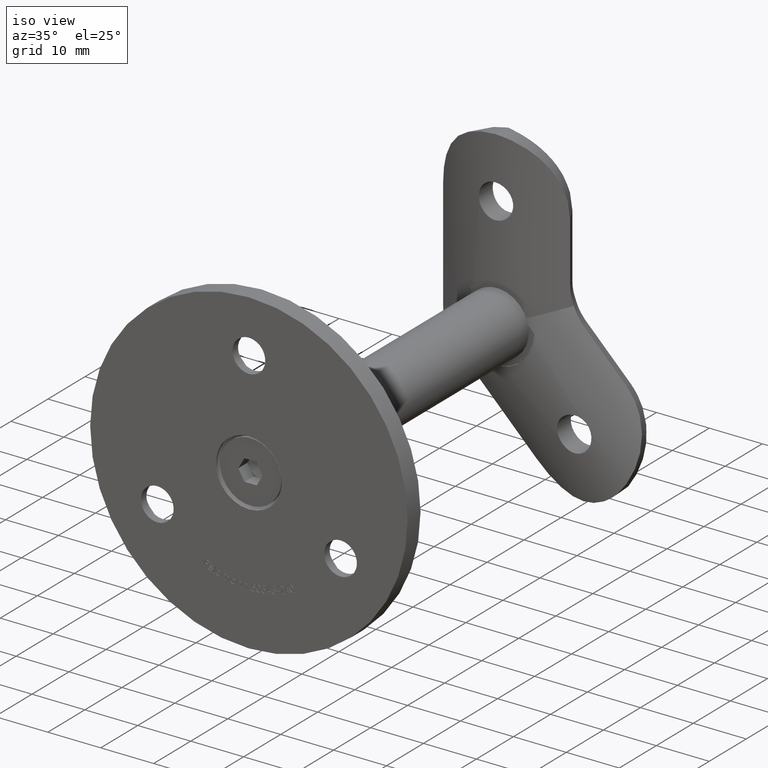
[diagram: clean part render]
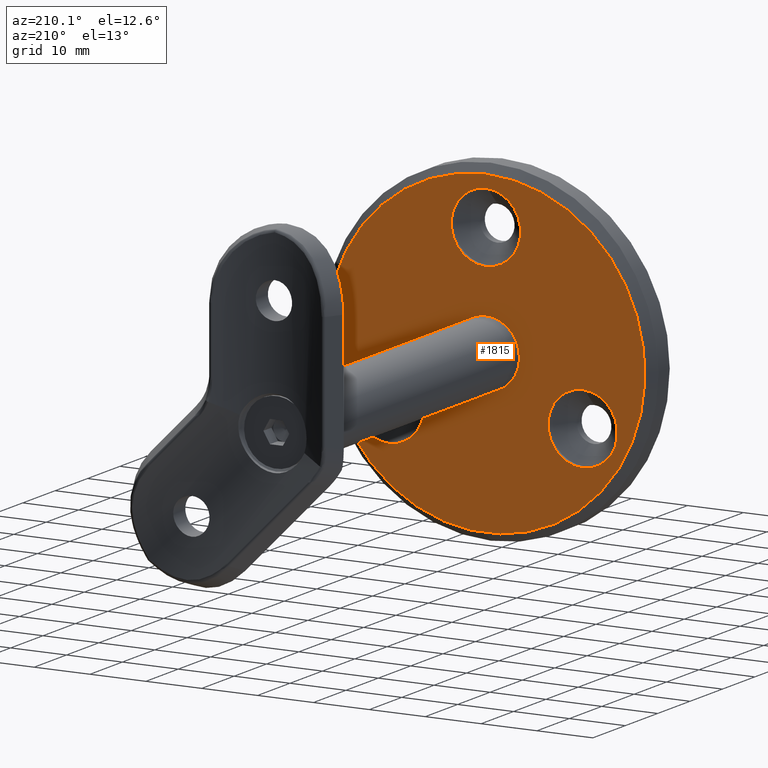
[diagram: tour spotlight — one face highlighted and labeled with its STEP entity id]
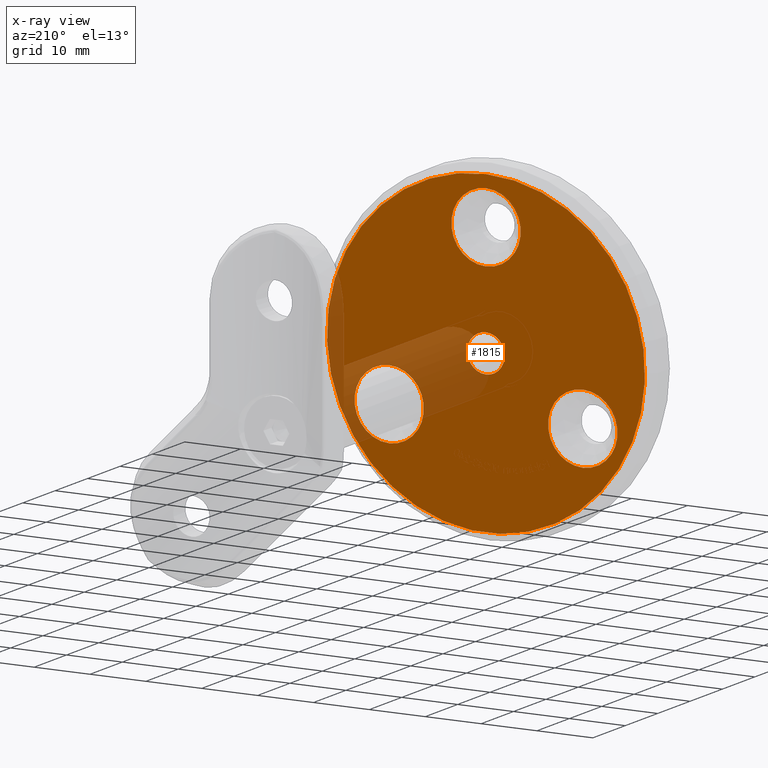
[diagram: x-ray of the same camera — body ghosted, this tour face saturated]
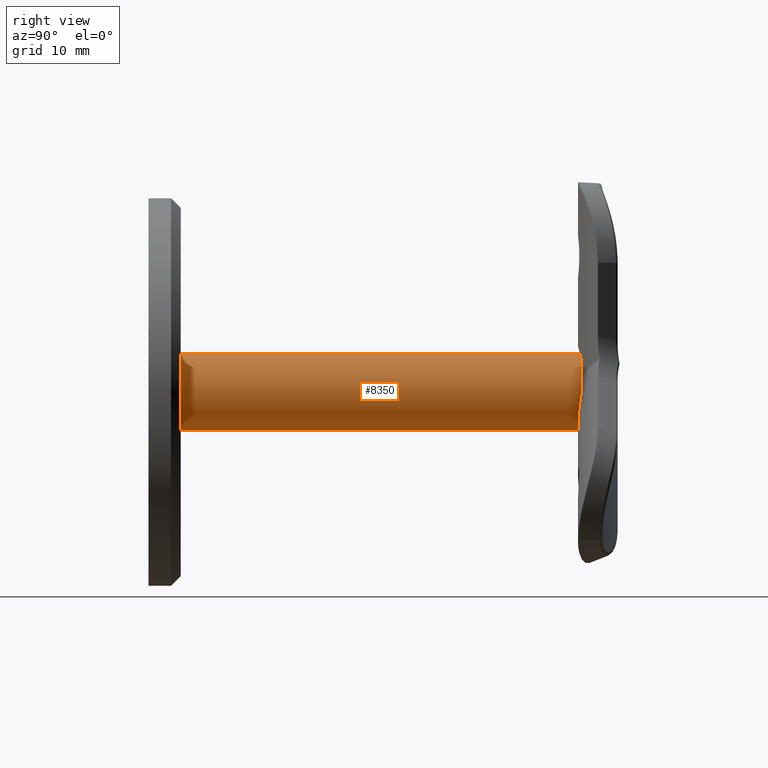
[diagram: tour spotlight — one face highlighted and labeled with its STEP entity id]
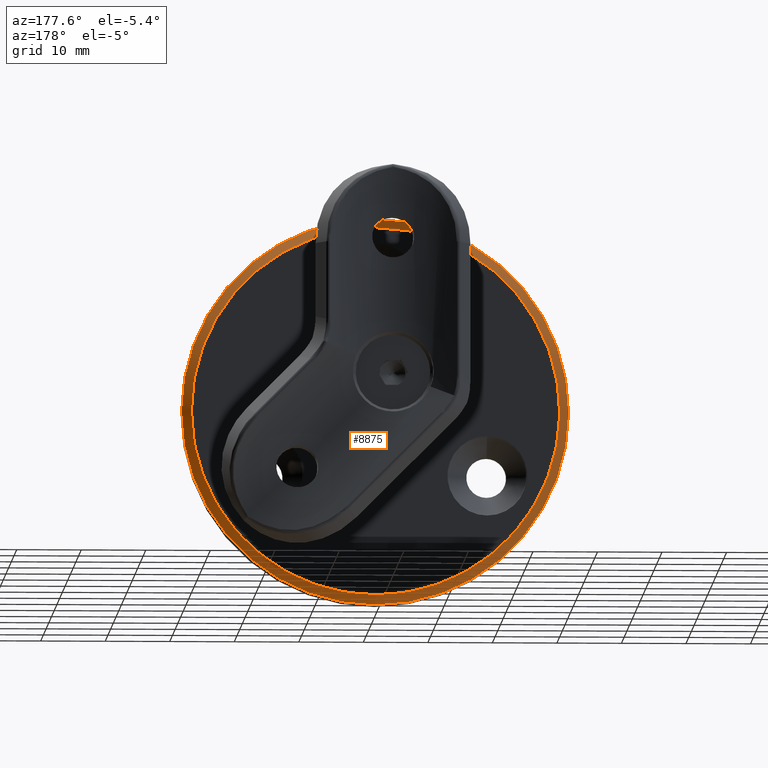
[diagram: tour spotlight — one face highlighted and labeled with its STEP entity id]
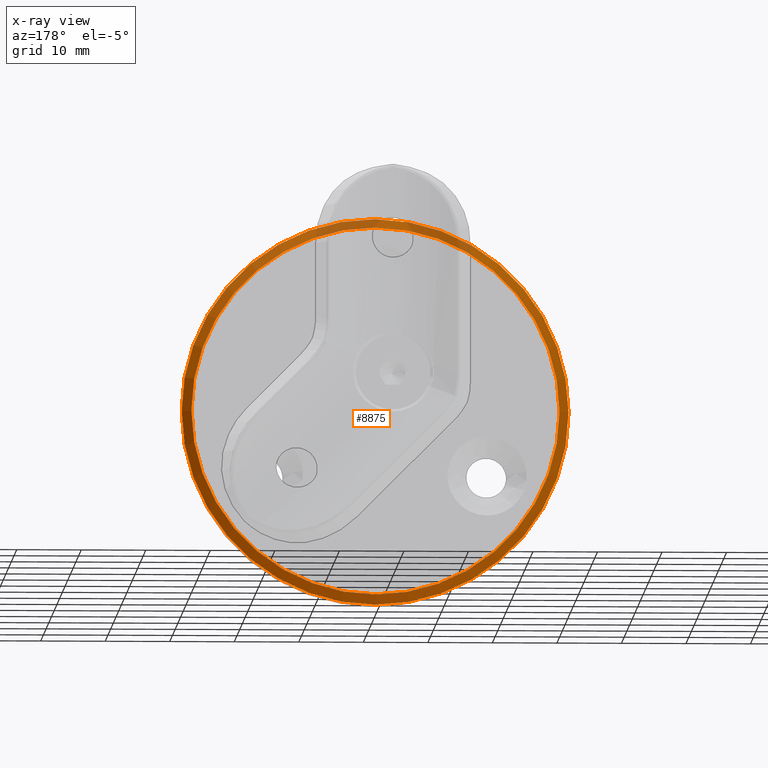
[diagram: x-ray of the same camera — body ghosted, this tour face saturated]
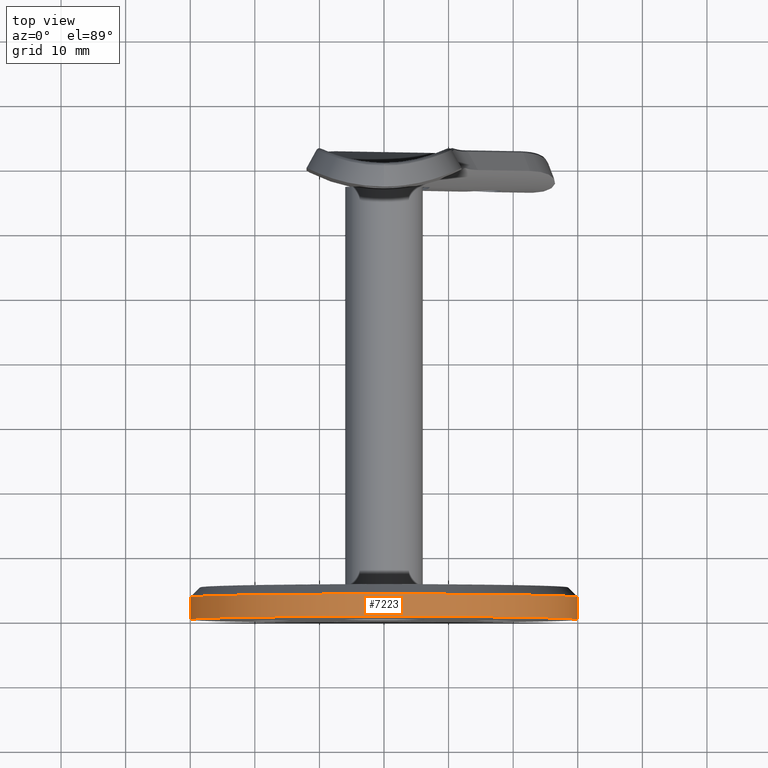
[diagram: tour spotlight — one face highlighted and labeled with its STEP entity id]
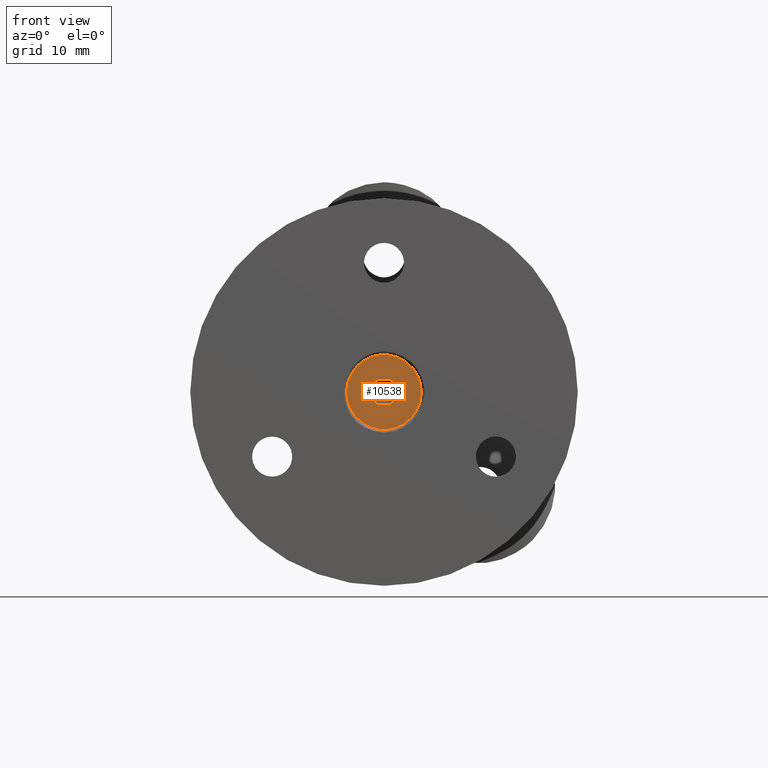
[diagram: tour spotlight — one face highlighted and labeled with its STEP entity id]
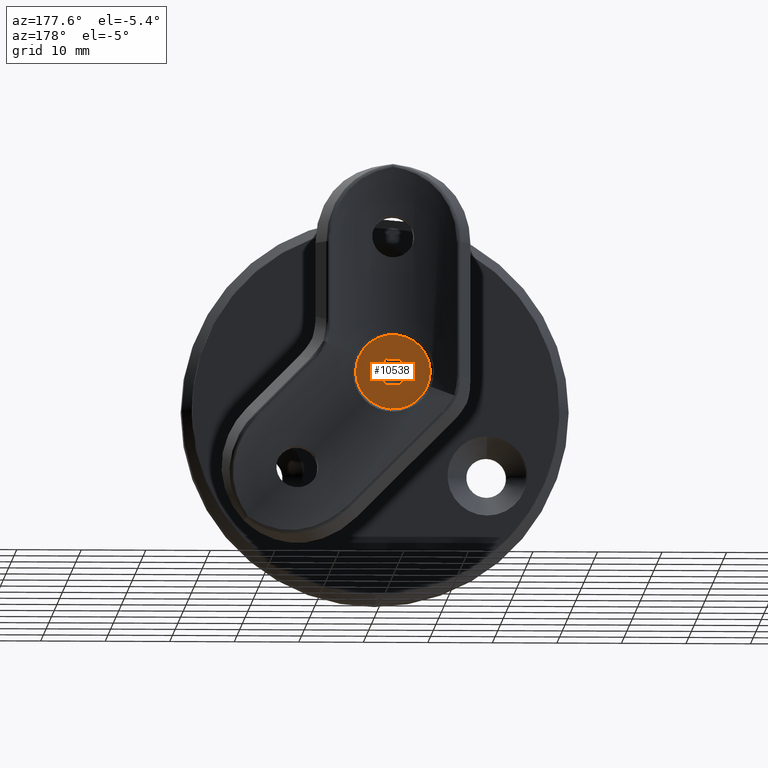
[diagram: tour spotlight — one face highlighted and labeled with its STEP entity id]
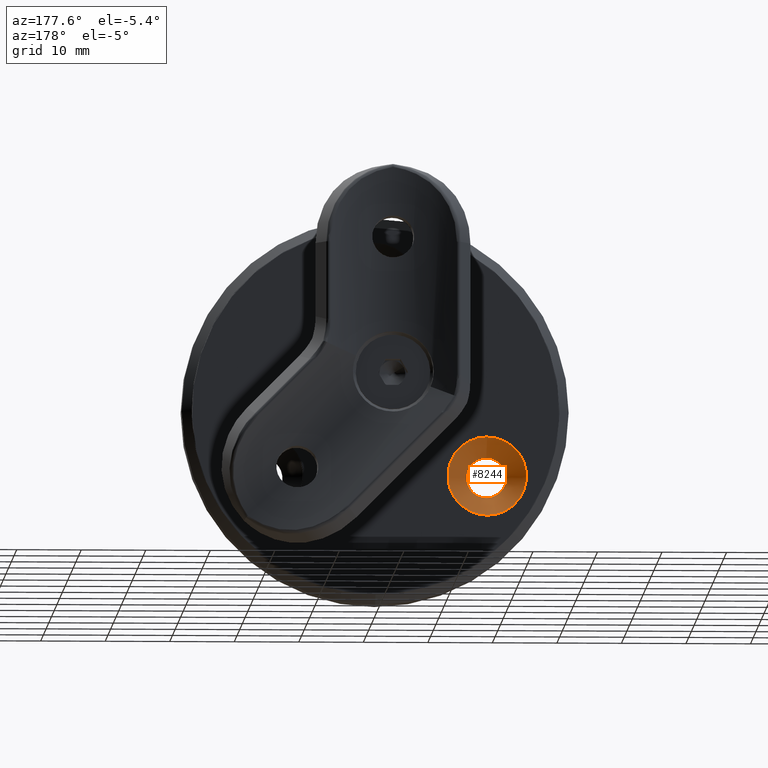
[diagram: tour spotlight — one face highlighted and labeled with its STEP entity id]
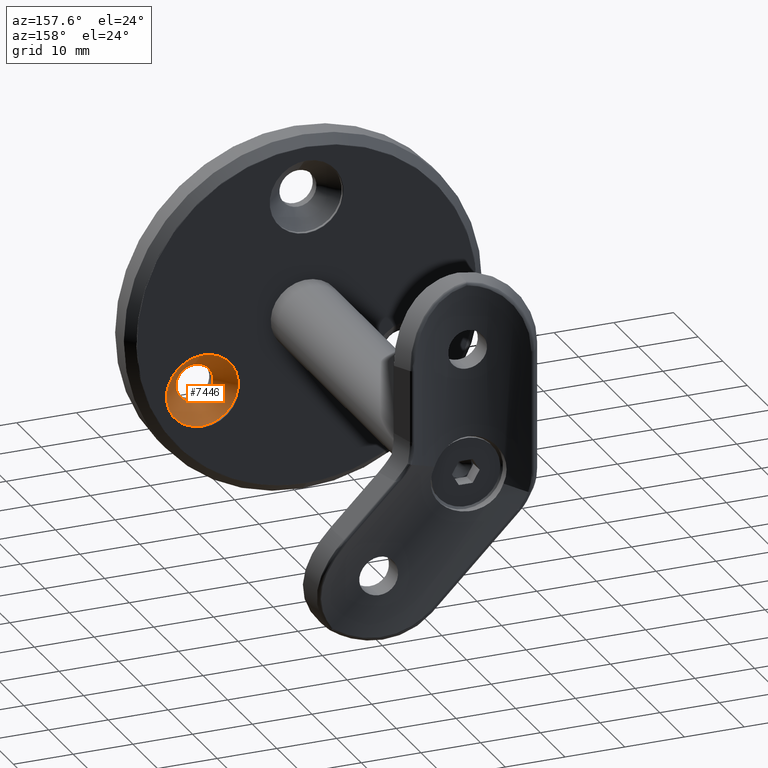
[diagram: tour spotlight — one face highlighted and labeled with its STEP entity id]
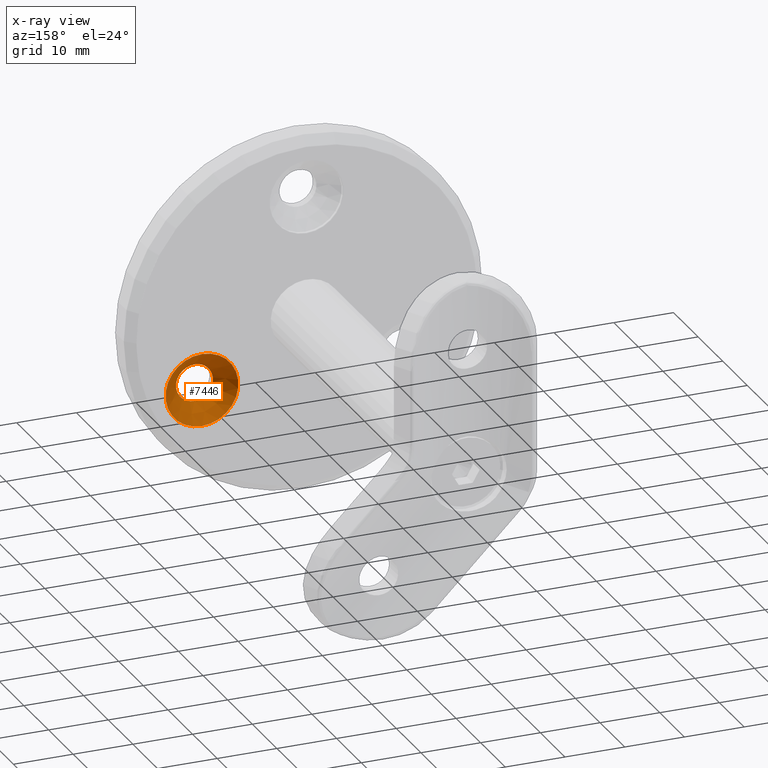
[diagram: x-ray of the same camera — body ghosted, this tour face saturated]
A machine part: a face-by-face anatomy tour. The part has 385 B-rep faces; the first image is the clean iso view, then the 8 largest visible faces are spotlighted one at a time (largest first), each with its STEP entity span.

Face 1 — auxiliary view, entity #1815. An x-ray twin of the same camera follows (body ghosted, this face saturated) — the face is partly hidden behind the body. In plain terms, the highlighted planar face has unit normal (0, 1, 0).
Definition (entity closure, byte-faithful):
#242 = FACE_BOUND ( 'NONE', #4084, .T. ) ;
#846 = CIRCLE ( 'NONE', #4364, 3.349999999999999201 ) ;
#1357 = VERTEX_POINT ( 'NONE', #13132 ) ;
#1464 = PLANE ( 'NONE',  #16862 ) ;
#1575 = DIRECTION ( 'NONE',  ( 0.000000000000000000, -0.000000000000000000, 1.000000000000000000 ) ) ;
#1815 = ADVANCED_FACE ( 'NONE', ( #16563, #2324, #16147, #242, #7312 ), #1464, .T. ) ;
#2192 = EDGE_LOOP ( 'NONE', ( #5850 ) ) ;
#2288 = CIRCLE ( 'NONE', #13063, 6.199999999999998401 ) ;
#2324 = FACE_BOUND ( 'NONE', #16742, .T. ) ;
#2491 = CARTESIAN_POINT ( 'NONE',  ( 17.32050807568886697, 5.000000000000000888, -3.799999999999840838 ) ) ;
#2795 = DIRECTION ( 'NONE',  ( 0.000000000000000000, 0.000000000000000000, 1.000000000000000000 ) ) ;
#2882 = DIRECTION ( 'NONE',  ( 0.000000000000000000, 0.000000000000000000, 1.000000000000000000 ) ) ;
#2995 = DIRECTION ( 'NONE',  ( 0.000000000000000000, 0.000000000000000000, 1.000000000000000000 ) ) ;
#3389 = EDGE_LOOP ( 'NONE', ( #11400 ) ) ;
#3462 = VERTEX_POINT ( 'NONE', #6443 ) ;
#3467 = AXIS2_PLACEMENT_3D ( 'NONE', #16343, #5768, #2995 ) ;
#4063 = ORIENTED_EDGE ( 'NONE', *, *, #5561, .T. ) ;
#4084 = EDGE_LOOP ( 'NONE', ( #4063 ) ) ;
#4364 = AXIS2_PLACEMENT_3D ( 'NONE', #12633, #14031, #8710 ) ;
#5365 = ORIENTED_EDGE ( 'NONE', *, *, #9113, .T. ) ;
#5459 = EDGE_CURVE ( 'NONE', #1357, #1357, #16512, .T. ) ;
#5513 = CARTESIAN_POINT ( 'NONE',  ( 0.000000000000000000, 5.000000000000000888, 0.000000000000000000 ) ) ;
#5561 = EDGE_CURVE ( 'NONE', #3462, #3462, #846, .T. ) ;
#5768 = DIRECTION ( 'NONE',  ( 0.000000000000000000, 1.000000000000000000, 0.000000000000000000 ) ) ;
#5850 = ORIENTED_EDGE ( 'NONE', *, *, #17055, .T. ) ;
#6443 = CARTESIAN_POINT ( 'NONE',  ( 0.000000000000000000, 5.000000000000000888, 3.349999999999999201 ) ) ;
#7233 = DIRECTION ( 'NONE',  ( -0.000000000000000000, -1.000000000000000000, -0.000000000000000000 ) ) ;
#7312 = FACE_OUTER_BOUND ( 'NONE', #3389, .T. ) ;
#7686 = CIRCLE ( 'NONE', #14824, 6.200000000000000178 ) ;
#8710 = DIRECTION ( 'NONE',  ( 0.000000000000000000, 0.000000000000000000, 1.000000000000000000 ) ) ;
#9066 = EDGE_CURVE ( 'NONE', #13144, #13144, #2288, .T. ) ;
#9113 = EDGE_CURVE ( 'NONE', #15202, #15202, #7686, .T. ) ;
#9429 = CARTESIAN_POINT ( 'NONE',  ( 17.32050807568886697, 5.000000000000000888, -9.999999999999838352 ) ) ;
#9732 = VERTEX_POINT ( 'NONE', #14678 ) ;
#9948 = DIRECTION ( 'NONE',  ( 0.000000000000000000, 0.000000000000000000, 1.000000000000000000 ) ) ;
#10801 = DIRECTION ( 'NONE',  ( -0.000000000000000000, -1.000000000000000000, -0.000000000000000000 ) ) ;
#10820 = DIRECTION ( 'NONE',  ( 0.000000000000000000, 1.000000000000000000, 0.000000000000000000 ) ) ;
#10824 = DIRECTION ( 'NONE',  ( -0.000000000000000000, -1.000000000000000000, -0.000000000000000000 ) ) ;
#11400 = ORIENTED_EDGE ( 'NONE', *, *, #5459, .T. ) ;
#12554 = ORIENTED_EDGE ( 'NONE', *, *, #9066, .T. ) ;
#12633 = CARTESIAN_POINT ( 'NONE',  ( 0.000000000000000000, 5.000000000000000888, 0.000000000000000000 ) ) ;
#12686 = EDGE_LOOP ( 'NONE', ( #12554 ) ) ;
#12753 = CARTESIAN_POINT ( 'NONE',  ( -17.32050807568873196, 5.000000000000000888, -10.00000000000008171 ) ) ;
#13063 = AXIS2_PLACEMENT_3D ( 'NONE', #9429, #10824, #2882 ) ;
#13132 = CARTESIAN_POINT ( 'NONE',  ( 0.000000000000000000, 5.000000000000000888, 28.45857864376268864 ) ) ;
#13144 = VERTEX_POINT ( 'NONE', #2491 ) ;
#13974 = AXIS2_PLACEMENT_3D ( 'NONE', #16140, #10801, #2795 ) ;
#14031 = DIRECTION ( 'NONE',  ( -0.000000000000000000, -1.000000000000000000, -0.000000000000000000 ) ) ;
#14453 = CARTESIAN_POINT ( 'NONE',  ( -17.32050807568873196, 5.000000000000000888, -3.800000000000081979 ) ) ;
#14678 = CARTESIAN_POINT ( 'NONE',  ( 0.000000000000000000, 5.000000000000000888, 26.20000000000000284 ) ) ;
#14824 = AXIS2_PLACEMENT_3D ( 'NONE', #12753, #7233, #9948 ) ;
#15202 = VERTEX_POINT ( 'NONE', #14453 ) ;
#15883 = CIRCLE ( 'NONE', #13974, 6.200000000000001066 ) ;
#16140 = CARTESIAN_POINT ( 'NONE',  ( 0.000000000000000000, 5.000000000000000888, 20.00000000000000000 ) ) ;
#16147 = FACE_BOUND ( 'NONE', #12686, .T. ) ;
#16343 = CARTESIAN_POINT ( 'NONE',  ( 0.000000000000000000, 5.000000000000000888, 0.000000000000000000 ) ) ;
#16512 = CIRCLE ( 'NONE', #3467, 28.45857864376268864 ) ;
#16563 = FACE_BOUND ( 'NONE', #2192, .T. ) ;
#16742 = EDGE_LOOP ( 'NONE', ( #5365 ) ) ;
#16862 = AXIS2_PLACEMENT_3D ( 'NONE', #5513, #10820, #1575 ) ;
#17055 = EDGE_CURVE ( 'NONE', #9732, #9732, #15883, .T. ) ;

Face 2 — right view, entity #8350. In plain terms, the highlighted cylindrical surface (bore or boss wall) has radius 6 mm, axis along (0, -1, 0).
Definition (entity closure, byte-faithful):
#440 = ORIENTED_EDGE ( 'NONE', *, *, #1321, .F. ) ;
#644 = AXIS2_PLACEMENT_3D ( 'NONE', #2876, #4104, #13455 ) ;
#1321 = EDGE_CURVE ( 'NONE', #17329, #17329, #3417, .T. ) ;
#1439 = CYLINDRICAL_SURFACE ( 'NONE', #9415, 5.999999999999999112 ) ;
#2876 = CARTESIAN_POINT ( 'NONE',  ( 0.000000000000000000, 61.99999999999999289, 0.000000000000000000 ) ) ;
#2977 = DIRECTION ( 'NONE',  ( 0.000000000000000000, -1.000000000000000000, -0.000000000000000000 ) ) ;
#3417 = CIRCLE ( 'NONE', #644, 5.999999999999999112 ) ;
#3524 = EDGE_LOOP ( 'NONE', ( #12978 ) ) ;
#4104 = DIRECTION ( 'NONE',  ( 0.000000000000000000, 1.000000000000000000, 0.000000000000000000 ) ) ;
#8350 = ADVANCED_FACE ( 'NONE', ( #11283, #10859 ), #1439, .T. ) ;
#8459 = CARTESIAN_POINT ( 'NONE',  ( 0.000000000000000000, 61.99999999999999289, 0.000000000000000000 ) ) ;
#8653 = DIRECTION ( 'NONE',  ( 0.000000000000000000, 0.000000000000000000, 1.000000000000000000 ) ) ;
#9034 = CARTESIAN_POINT ( 'NONE',  ( 0.000000000000000000, 0.000000000000000000, 5.999999999999999112 ) ) ;
#9415 = AXIS2_PLACEMENT_3D ( 'NONE', #8459, #2977, #16318 ) ;
#9995 = CARTESIAN_POINT ( 'NONE',  ( 0.000000000000000000, 0.000000000000000000, 0.000000000000000000 ) ) ;
#10426 = EDGE_LOOP ( 'NONE', ( #440 ) ) ;
#10859 = FACE_OUTER_BOUND ( 'NONE', #3524, .T. ) ;
#11002 = VERTEX_POINT ( 'NONE', #9034 ) ;
#11283 = FACE_OUTER_BOUND ( 'NONE', #10426, .T. ) ;
#11497 = AXIS2_PLACEMENT_3D ( 'NONE', #9995, #12570, #8653 ) ;
#11564 = CARTESIAN_POINT ( 'NONE',  ( 0.000000000000000000, 61.99999999999999289, 5.999999999999999112 ) ) ;
#11903 = CIRCLE ( 'NONE', #11497, 5.999999999999999112 ) ;
#12570 = DIRECTION ( 'NONE',  ( 0.000000000000000000, 1.000000000000000000, 0.000000000000000000 ) ) ;
#12978 = ORIENTED_EDGE ( 'NONE', *, *, #16632, .T. ) ;
#13455 = DIRECTION ( 'NONE',  ( 0.000000000000000000, 0.000000000000000000, 1.000000000000000000 ) ) ;
#16318 = DIRECTION ( 'NONE',  ( 0.000000000000000000, 0.000000000000000000, -1.000000000000000000 ) ) ;
#16632 = EDGE_CURVE ( 'NONE', #11002, #11002, #11903, .T. ) ;
#17329 = VERTEX_POINT ( 'NONE', #11564 ) ;

Face 3 — auxiliary view, entity #8875. An x-ray twin of the same camera follows (body ghosted, this face saturated) — the face is partly hidden behind the body. In plain terms, the highlighted conical surface has half-angle 45 deg.
Definition (entity closure, byte-faithful):
#45 = EDGE_CURVE ( 'NONE', #8524, #8524, #5072, .T. ) ;
#534 = VERTEX_POINT ( 'NONE', #16006 ) ;
#857 = CARTESIAN_POINT ( 'NONE',  ( 0.000000000000000000, 3.529289321881332153, -29.97071067811865674 ) ) ;
#865 = CARTESIAN_POINT ( 'NONE',  ( 0.000000000000000000, 4.970710678118654968, 0.000000000000000000 ) ) ;
#1078 = CARTESIAN_POINT ( 'NONE',  ( 0.000000000000000000, 5.000000000000000888, 0.000000000000000000 ) ) ;
#3997 = DIRECTION ( 'NONE',  ( -0.000000000000000000, 1.000000000000000000, -0.000000000000000000 ) ) ;
#4724 = ORIENTED_EDGE ( 'NONE', *, *, #8477, .T. ) ;
#5072 = CIRCLE ( 'NONE', #11906, 29.97071067811865674 ) ;
#6240 = ORIENTED_EDGE ( 'NONE', *, *, #45, .T. ) ;
#6885 = CIRCLE ( 'NONE', #16033, 28.52928932188133970 ) ;
#7663 = DIRECTION ( 'NONE',  ( 0.000000000000000000, -1.000000000000000000, 0.000000000000000000 ) ) ;
#8353 = FACE_OUTER_BOUND ( 'NONE', #12339, .T. ) ;
#8477 = EDGE_CURVE ( 'NONE', #534, #534, #6885, .T. ) ;
#8524 = VERTEX_POINT ( 'NONE', #857 ) ;
#8875 = ADVANCED_FACE ( 'NONE', ( #8353, #15086 ), #13438, .T. ) ;
#9021 = DIRECTION ( 'NONE',  ( 0.000000000000000000, 0.000000000000000000, -1.000000000000000000 ) ) ;
#9317 = DIRECTION ( 'NONE',  ( 0.000000000000000000, 0.000000000000000000, -1.000000000000000000 ) ) ;
#10647 = EDGE_LOOP ( 'NONE', ( #4724 ) ) ;
#11906 = AXIS2_PLACEMENT_3D ( 'NONE', #12163, #3997, #9317 ) ;
#12163 = CARTESIAN_POINT ( 'NONE',  ( 0.000000000000000000, 3.529289321881332153, 0.000000000000000000 ) ) ;
#12339 = EDGE_LOOP ( 'NONE', ( #6240 ) ) ;
#13438 = CONICAL_SURFACE ( 'NONE', #16595, 28.49999999999999645, 0.7853981633974460586 ) ;
#15086 = FACE_BOUND ( 'NONE', #10647, .T. ) ;
#16006 = CARTESIAN_POINT ( 'NONE',  ( 0.000000000000000000, 4.970710678118654968, 28.52928932188133970 ) ) ;
#16033 = AXIS2_PLACEMENT_3D ( 'NONE', #865, #17058, #16894 ) ;
#16595 = AXIS2_PLACEMENT_3D ( 'NONE', #1078, #7663, #9021 ) ;
#16894 = DIRECTION ( 'NONE',  ( 0.000000000000000000, 0.000000000000000000, 1.000000000000000000 ) ) ;
#17058 = DIRECTION ( 'NONE',  ( -0.000000000000000000, -1.000000000000000000, -0.000000000000000000 ) ) ;

Face 4 — top view, entity #7223. In plain terms, the highlighted cylindrical surface (bore or boss wall) has radius 30 mm, axis along (-0, -1, -0).
Definition (entity closure, byte-faithful):
#1251 = CARTESIAN_POINT ( 'NONE',  ( 0.000000000000000000, 0.000000000000000000, 30.00000000000000000 ) ) ;
#1636 = DIRECTION ( 'NONE',  ( 0.000000000000000000, -1.000000000000000000, 0.000000000000000000 ) ) ;
#2370 = CARTESIAN_POINT ( 'NONE',  ( 0.000000000000000000, 3.458578643762678873, 30.00000000000000000 ) ) ;
#3099 = FACE_OUTER_BOUND ( 'NONE', #11060, .T. ) ;
#3371 = DIRECTION ( 'NONE',  ( 0.000000000000000000, 0.000000000000000000, -1.000000000000000000 ) ) ;
#3808 = EDGE_LOOP ( 'NONE', ( #14048 ) ) ;
#5767 = DIRECTION ( 'NONE',  ( 0.000000000000000000, 0.000000000000000000, 1.000000000000000000 ) ) ;
#5821 = CARTESIAN_POINT ( 'NONE',  ( 0.000000000000000000, 0.000000000000000000, 0.000000000000000000 ) ) ;
#5985 = DIRECTION ( 'NONE',  ( 0.000000000000000000, 1.000000000000000000, 0.000000000000000000 ) ) ;
#7223 = ADVANCED_FACE ( 'NONE', ( #3099, #9780 ), #17330, .T. ) ;
#7497 = AXIS2_PLACEMENT_3D ( 'NONE', #14001, #16708, #3371 ) ;
#8060 = VERTEX_POINT ( 'NONE', #2370 ) ;
#9780 = FACE_OUTER_BOUND ( 'NONE', #3808, .T. ) ;
#9934 = VERTEX_POINT ( 'NONE', #1251 ) ;
#10850 = EDGE_CURVE ( 'NONE', #8060, #8060, #11848, .T. ) ;
#11060 = EDGE_LOOP ( 'NONE', ( #12459 ) ) ;
#11064 = DIRECTION ( 'NONE',  ( 0.000000000000000000, 0.000000000000000000, 1.000000000000000000 ) ) ;
#11480 = CIRCLE ( 'NONE', #16551, 30.00000000000000000 ) ;
#11680 = AXIS2_PLACEMENT_3D ( 'NONE', #16339, #1636, #11064 ) ;
#11848 = CIRCLE ( 'NONE', #11680, 30.00000000000000000 ) ;
#12459 = ORIENTED_EDGE ( 'NONE', *, *, #10850, .T. ) ;
#14001 = CARTESIAN_POINT ( 'NONE',  ( 0.000000000000000000, 5.000000000000000888, 0.000000000000000000 ) ) ;
#14048 = ORIENTED_EDGE ( 'NONE', *, *, #16735, .T. ) ;
#16339 = CARTESIAN_POINT ( 'NONE',  ( 0.000000000000000000, 3.458578643762678873, 0.000000000000000000 ) ) ;
#16551 = AXIS2_PLACEMENT_3D ( 'NONE', #5821, #5985, #5767 ) ;
#16708 = DIRECTION ( 'NONE',  ( -0.000000000000000000, -1.000000000000000000, -0.000000000000000000 ) ) ;
#16735 = EDGE_CURVE ( 'NONE', #9934, #9934, #11480, .T. ) ;
#17330 = CYLINDRICAL_SURFACE ( 'NONE', #7497, 30.00000000000000000 ) ;

Face 5 — front view, entity #10538. In plain terms, the highlighted planar face has unit normal (0, -1, -0).
Definition (entity closure, byte-faithful):
#183 = ORIENTED_EDGE ( 'NONE', *, *, #15350, .T. ) ;
#1238 = VERTEX_POINT ( 'NONE', #11609 ) ;
#2396 = ORIENTED_EDGE ( 'NONE', *, *, #8667, .T. ) ;
#2436 = DIRECTION ( 'NONE',  ( -1.000000000000000000, 0.000000000000000000, -0.000000000000000000 ) ) ;
#2847 = CARTESIAN_POINT ( 'NONE',  ( -0.000000000000000000, -1.160474041071148044, -2.009999999999999787 ) ) ;
#3175 = VERTEX_POINT ( 'NONE', #5839 ) ;
#3402 = ORIENTED_EDGE ( 'NONE', *, *, #7634, .T. ) ;
#3454 = DIRECTION ( 'NONE',  ( -0.000000000000000000, -0.4999999999999989453, -0.8660254037844391517 ) ) ;
#3938 = VECTOR ( 'NONE', #14321, 1000.000000000000114 ) ;
#3998 = FACE_BOUND ( 'NONE', #8493, .T. ) ;
#4444 = EDGE_CURVE ( 'NONE', #14592, #14592, #9284, .T. ) ;
#5164 = CARTESIAN_POINT ( 'NONE',  ( 0.000000000000000000, -1.160474041071147600, 2.009999999999999343 ) ) ;
#5333 = ORIENTED_EDGE ( 'NONE', *, *, #4444, .T. ) ;
#5615 = VECTOR ( 'NONE', #12291, 1000.000000000000000 ) ;
#5785 = CARTESIAN_POINT ( 'NONE',  ( -0.000000000000000000, -1.160474041071148044, -2.009999999999999787 ) ) ;
#5839 = CARTESIAN_POINT ( 'NONE',  ( 0.000000000000000000, -2.320948082142291646, -2.168404344971008868E-16 ) ) ;
#5935 = CARTESIAN_POINT ( 'NONE',  ( 0.000000000000000000, -1.160474041071147600, 2.009999999999999343 ) ) ;
#5991 = EDGE_CURVE ( 'NONE', #1238, #8136, #16436, .T. ) ;
#5999 = CARTESIAN_POINT ( 'NONE',  ( -0.000000000000000000, -2.320948082142291646, -2.853186061490888752E-17 ) ) ;
#6027 = CARTESIAN_POINT ( 'NONE',  ( 0.000000000000000000, 0.000000000000000000, 0.000000000000000000 ) ) ;
#6028 = VERTEX_POINT ( 'NONE', #9467 ) ;
#6163 = EDGE_LOOP ( 'NONE', ( #5333 ) ) ;
#6456 = CARTESIAN_POINT ( 'NONE',  ( 0.000000000000000000, 2.320948082142297864, 1.845044017635223792E-16 ) ) ;
#6657 = VECTOR ( 'NONE', #11807, 1000.000000000000227 ) ;
#7063 = LINE ( 'NONE', #5935, #16912 ) ;
#7283 = CARTESIAN_POINT ( 'NONE',  ( 0.000000000000000000, 2.320948082142297864, 1.845044017635223792E-16 ) ) ;
#7634 = EDGE_CURVE ( 'NONE', #8136, #3175, #7063, .T. ) ;
#7689 = CARTESIAN_POINT ( 'NONE',  ( 0.000000000000000000, 1.160474041071148710, -2.009999999999998455 ) ) ;
#7952 = ORIENTED_EDGE ( 'NONE', *, *, #11607, .T. ) ;
#8115 = LINE ( 'NONE', #5999, #3938 ) ;
#8136 = VERTEX_POINT ( 'NONE', #5164 ) ;
#8493 = EDGE_LOOP ( 'NONE', ( #3402, #10511, #2396, #183, #7952, #14770 ) ) ;
#8667 = EDGE_CURVE ( 'NONE', #16109, #6028, #15921, .T. ) ;
#9261 = EDGE_CURVE ( 'NONE', #3175, #16109, #8115, .T. ) ;
#9284 = CIRCLE ( 'NONE', #16270, 5.784999999999998366 ) ;
#9347 = DIRECTION ( 'NONE',  ( 0.000000000000000000, -1.000000000000000000, 3.737100991883480099E-16 ) ) ;
#9436 = FACE_OUTER_BOUND ( 'NONE', #6163, .T. ) ;
#9467 = CARTESIAN_POINT ( 'NONE',  ( 0.000000000000000000, 1.160474041071148710, -2.009999999999998455 ) ) ;
#9765 = DIRECTION ( 'NONE',  ( 0.000000000000000000, -0.5000000000000007772, 0.8660254037844381525 ) ) ;
#10498 = CARTESIAN_POINT ( 'NONE',  ( 0.000000000000000000, 0.000000000000000000, 5.784999999999998366 ) ) ;
#10511 = ORIENTED_EDGE ( 'NONE', *, *, #9261, .T. ) ;
#10538 = ADVANCED_FACE ( 'NONE', ( #9436, #3998 ), #14284, .T. ) ;
#10771 = AXIS2_PLACEMENT_3D ( 'NONE', #11677, #2436, #13135 ) ;
#11360 = VECTOR ( 'NONE', #9765, 1000.000000000000227 ) ;
#11607 = EDGE_CURVE ( 'NONE', #14335, #1238, #14948, .T. ) ;
#11609 = CARTESIAN_POINT ( 'NONE',  ( 0.000000000000000000, 1.160474041071148710, 2.009999999999998455 ) ) ;
#11677 = CARTESIAN_POINT ( 'NONE',  ( 0.000000000000000000, 0.000000000000000000, 0.000000000000000000 ) ) ;
#11807 = DIRECTION ( 'NONE',  ( 0.000000000000000000, 0.5000000000000007772, 0.8660254037844381525 ) ) ;
#12048 = VECTOR ( 'NONE', #9347, 1000.000000000000000 ) ;
#12291 = DIRECTION ( 'NONE',  ( 0.000000000000000000, 1.000000000000000000, 5.605651487825218176E-16 ) ) ;
#12844 = DIRECTION ( 'NONE',  ( 0.000000000000000000, 0.000000000000000000, 1.000000000000000000 ) ) ;
#13135 = DIRECTION ( 'NONE',  ( -0.000000000000000000, 0.000000000000000000, 1.000000000000000000 ) ) ;
#13857 = LINE ( 'NONE', #7689, #6657 ) ;
#14284 = PLANE ( 'NONE',  #10771 ) ;
#14321 = DIRECTION ( 'NONE',  ( 0.000000000000000000, 0.4999999999999987232, -0.8660254037844392627 ) ) ;
#14335 = VERTEX_POINT ( 'NONE', #6456 ) ;
#14592 = VERTEX_POINT ( 'NONE', #10498 ) ;
#14770 = ORIENTED_EDGE ( 'NONE', *, *, #5991, .T. ) ;
#14948 = LINE ( 'NONE', #7283, #11360 ) ;
#15350 = EDGE_CURVE ( 'NONE', #6028, #14335, #13857, .T. ) ;
#15921 = LINE ( 'NONE', #2847, #5615 ) ;
#16109 = VERTEX_POINT ( 'NONE', #5785 ) ;
#16152 = CARTESIAN_POINT ( 'NONE',  ( 0.000000000000000000, 1.160474041071148710, 2.009999999999998455 ) ) ;
#16270 = AXIS2_PLACEMENT_3D ( 'NONE', #6027, #16779, #12844 ) ;
#16436 = LINE ( 'NONE', #16152, #12048 ) ;
#16779 = DIRECTION ( 'NONE',  ( -1.000000000000000000, -0.000000000000000000, -0.000000000000000000 ) ) ;
#16912 = VECTOR ( 'NONE', #3454, 1000.000000000000227 ) ;

Face 6 — auxiliary view, entity #10538. In plain terms, the highlighted planar face has unit normal (0, 1, 0).
Definition (entity closure, byte-faithful):
#183 = ORIENTED_EDGE ( 'NONE', *, *, #15350, .T. ) ;
#1238 = VERTEX_POINT ( 'NONE', #11609 ) ;
#2396 = ORIENTED_EDGE ( 'NONE', *, *, #8667, .T. ) ;
#2436 = DIRECTION ( 'NONE',  ( -1.000000000000000000, 0.000000000000000000, -0.000000000000000000 ) ) ;
#2847 = CARTESIAN_POINT ( 'NONE',  ( -0.000000000000000000, -1.160474041071148044, -2.009999999999999787 ) ) ;
#3175 = VERTEX_POINT ( 'NONE', #5839 ) ;
#3402 = ORIENTED_EDGE ( 'NONE', *, *, #7634, .T. ) ;
#3454 = DIRECTION ( 'NONE',  ( -0.000000000000000000, -0.4999999999999989453, -0.8660254037844391517 ) ) ;
#3938 = VECTOR ( 'NONE', #14321, 1000.000000000000114 ) ;
#3998 = FACE_BOUND ( 'NONE', #8493, .T. ) ;
#4444 = EDGE_CURVE ( 'NONE', #14592, #14592, #9284, .T. ) ;
#5164 = CARTESIAN_POINT ( 'NONE',  ( 0.000000000000000000, -1.160474041071147600, 2.009999999999999343 ) ) ;
#5333 = ORIENTED_EDGE ( 'NONE', *, *, #4444, .T. ) ;
#5615 = VECTOR ( 'NONE', #12291, 1000.000000000000000 ) ;
#5785 = CARTESIAN_POINT ( 'NONE',  ( -0.000000000000000000, -1.160474041071148044, -2.009999999999999787 ) ) ;
#5839 = CARTESIAN_POINT ( 'NONE',  ( 0.000000000000000000, -2.320948082142291646, -2.168404344971008868E-16 ) ) ;
#5935 = CARTESIAN_POINT ( 'NONE',  ( 0.000000000000000000, -1.160474041071147600, 2.009999999999999343 ) ) ;
#5991 = EDGE_CURVE ( 'NONE', #1238, #8136, #16436, .T. ) ;
#5999 = CARTESIAN_POINT ( 'NONE',  ( -0.000000000000000000, -2.320948082142291646, -2.853186061490888752E-17 ) ) ;
#6027 = CARTESIAN_POINT ( 'NONE',  ( 0.000000000000000000, 0.000000000000000000, 0.000000000000000000 ) ) ;
#6028 = VERTEX_POINT ( 'NONE', #9467 ) ;
#6163 = EDGE_LOOP ( 'NONE', ( #5333 ) ) ;
#6456 = CARTESIAN_POINT ( 'NONE',  ( 0.000000000000000000, 2.320948082142297864, 1.845044017635223792E-16 ) ) ;
#6657 = VECTOR ( 'NONE', #11807, 1000.000000000000227 ) ;
#7063 = LINE ( 'NONE', #5935, #16912 ) ;
#7283 = CARTESIAN_POINT ( 'NONE',  ( 0.000000000000000000, 2.320948082142297864, 1.845044017635223792E-16 ) ) ;
#7634 = EDGE_CURVE ( 'NONE', #8136, #3175, #7063, .T. ) ;
#7689 = CARTESIAN_POINT ( 'NONE',  ( 0.000000000000000000, 1.160474041071148710, -2.009999999999998455 ) ) ;
#7952 = ORIENTED_EDGE ( 'NONE', *, *, #11607, .T. ) ;
#8115 = LINE ( 'NONE', #5999, #3938 ) ;
#8136 = VERTEX_POINT ( 'NONE', #5164 ) ;
#8493 = EDGE_LOOP ( 'NONE', ( #3402, #10511, #2396, #183, #7952, #14770 ) ) ;
#8667 = EDGE_CURVE ( 'NONE', #16109, #6028, #15921, .T. ) ;
#9261 = EDGE_CURVE ( 'NONE', #3175, #16109, #8115, .T. ) ;
#9284 = CIRCLE ( 'NONE', #16270, 5.784999999999998366 ) ;
#9347 = DIRECTION ( 'NONE',  ( 0.000000000000000000, -1.000000000000000000, 3.737100991883480099E-16 ) ) ;
#9436 = FACE_OUTER_BOUND ( 'NONE', #6163, .T. ) ;
#9467 = CARTESIAN_POINT ( 'NONE',  ( 0.000000000000000000, 1.160474041071148710, -2.009999999999998455 ) ) ;
#9765 = DIRECTION ( 'NONE',  ( 0.000000000000000000, -0.5000000000000007772, 0.8660254037844381525 ) ) ;
#10498 = CARTESIAN_POINT ( 'NONE',  ( 0.000000000000000000, 0.000000000000000000, 5.784999999999998366 ) ) ;
#10511 = ORIENTED_EDGE ( 'NONE', *, *, #9261, .T. ) ;
#10538 = ADVANCED_FACE ( 'NONE', ( #9436, #3998 ), #14284, .T. ) ;
#10771 = AXIS2_PLACEMENT_3D ( 'NONE', #11677, #2436, #13135 ) ;
#11360 = VECTOR ( 'NONE', #9765, 1000.000000000000227 ) ;
#11607 = EDGE_CURVE ( 'NONE', #14335, #1238, #14948, .T. ) ;
#11609 = CARTESIAN_POINT ( 'NONE',  ( 0.000000000000000000, 1.160474041071148710, 2.009999999999998455 ) ) ;
#11677 = CARTESIAN_POINT ( 'NONE',  ( 0.000000000000000000, 0.000000000000000000, 0.000000000000000000 ) ) ;
#11807 = DIRECTION ( 'NONE',  ( 0.000000000000000000, 0.5000000000000007772, 0.8660254037844381525 ) ) ;
#12048 = VECTOR ( 'NONE', #9347, 1000.000000000000000 ) ;
#12291 = DIRECTION ( 'NONE',  ( 0.000000000000000000, 1.000000000000000000, 5.605651487825218176E-16 ) ) ;
#12844 = DIRECTION ( 'NONE',  ( 0.000000000000000000, 0.000000000000000000, 1.000000000000000000 ) ) ;
#13135 = DIRECTION ( 'NONE',  ( -0.000000000000000000, 0.000000000000000000, 1.000000000000000000 ) ) ;
#13857 = LINE ( 'NONE', #7689, #6657 ) ;
#14284 = PLANE ( 'NONE',  #10771 ) ;
#14321 = DIRECTION ( 'NONE',  ( 0.000000000000000000, 0.4999999999999987232, -0.8660254037844392627 ) ) ;
#14335 = VERTEX_POINT ( 'NONE', #6456 ) ;
#14592 = VERTEX_POINT ( 'NONE', #10498 ) ;
#14770 = ORIENTED_EDGE ( 'NONE', *, *, #5991, .T. ) ;
#14948 = LINE ( 'NONE', #7283, #11360 ) ;
#15350 = EDGE_CURVE ( 'NONE', #6028, #14335, #13857, .T. ) ;
#15921 = LINE ( 'NONE', #2847, #5615 ) ;
#16109 = VERTEX_POINT ( 'NONE', #5785 ) ;
#16152 = CARTESIAN_POINT ( 'NONE',  ( 0.000000000000000000, 1.160474041071148710, 2.009999999999998455 ) ) ;
#16270 = AXIS2_PLACEMENT_3D ( 'NONE', #6027, #16779, #12844 ) ;
#16436 = LINE ( 'NONE', #16152, #12048 ) ;
#16779 = DIRECTION ( 'NONE',  ( -1.000000000000000000, -0.000000000000000000, -0.000000000000000000 ) ) ;
#16912 = VECTOR ( 'NONE', #3454, 1000.000000000000227 ) ;

Face 7 — auxiliary view, entity #8244. In plain terms, the highlighted conical surface has half-angle 45 deg.
Definition (entity closure, byte-faithful):
#202 = FACE_BOUND ( 'NONE', #10110, .T. ) ;
#398 = AXIS2_PLACEMENT_3D ( 'NONE', #1813, #1699, #10996 ) ;
#527 = DIRECTION ( 'NONE',  ( 0.000000000000000000, 0.000000000000000000, 1.000000000000000000 ) ) ;
#1699 = DIRECTION ( 'NONE',  ( -0.000000000000000000, 1.000000000000000000, -0.000000000000000000 ) ) ;
#1813 = CARTESIAN_POINT ( 'NONE',  ( -17.32050807568873196, 4.500000000000000888, -10.00000000000008171 ) ) ;
#2011 = EDGE_CURVE ( 'NONE', #11999, #11999, #5193, .T. ) ;
#2756 = DIRECTION ( 'NONE',  ( -0.000000000000000000, 1.000000000000000000, -0.000000000000000000 ) ) ;
#3330 = FACE_OUTER_BOUND ( 'NONE', #14802, .T. ) ;
#5080 = CARTESIAN_POINT ( 'NONE',  ( -17.32050807568873196, 1.500000000000001332, -6.900000000000081180 ) ) ;
#5193 = CIRCLE ( 'NONE', #398, 6.099999999999999645 ) ;
#5865 = CARTESIAN_POINT ( 'NONE',  ( -17.32050807568873196, 1.500000000000001332, -10.00000000000008171 ) ) ;
#7113 = CIRCLE ( 'NONE', #9470, 3.100000000000000533 ) ;
#8113 = DIRECTION ( 'NONE',  ( 0.000000000000000000, 0.000000000000000000, 1.000000000000000000 ) ) ;
#8183 = AXIS2_PLACEMENT_3D ( 'NONE', #16149, #2756, #8113 ) ;
#8244 = ADVANCED_FACE ( 'NONE', ( #202, #3330 ), #11712, .F. ) ;
#9470 = AXIS2_PLACEMENT_3D ( 'NONE', #5865, #11394, #527 ) ;
#10110 = EDGE_LOOP ( 'NONE', ( #17142 ) ) ;
#10996 = DIRECTION ( 'NONE',  ( 0.000000000000000000, 0.000000000000000000, 1.000000000000000000 ) ) ;
#11394 = DIRECTION ( 'NONE',  ( -0.000000000000000000, 1.000000000000000000, -0.000000000000000000 ) ) ;
#11623 = CARTESIAN_POINT ( 'NONE',  ( -17.32050807568873196, 4.500000000000000888, -3.900000000000082068 ) ) ;
#11712 = CONICAL_SURFACE ( 'NONE', #8183, 6.099999999999999645, 0.7853981633974485010 ) ;
#11999 = VERTEX_POINT ( 'NONE', #11623 ) ;
#12264 = ORIENTED_EDGE ( 'NONE', *, *, #2011, .T. ) ;
#13222 = EDGE_CURVE ( 'NONE', #13565, #13565, #7113, .T. ) ;
#13565 = VERTEX_POINT ( 'NONE', #5080 ) ;
#14802 = EDGE_LOOP ( 'NONE', ( #12264 ) ) ;
#16149 = CARTESIAN_POINT ( 'NONE',  ( -17.32050807568873196, 4.500000000000000888, -10.00000000000008171 ) ) ;
#17142 = ORIENTED_EDGE ( 'NONE', *, *, #13222, .F. ) ;

Face 8 — auxiliary view, entity #7446. An x-ray twin of the same camera follows (body ghosted, this face saturated) — the face is partly hidden behind the body. In plain terms, the highlighted conical surface has half-angle 45 deg.
Definition (entity closure, byte-faithful):
#2280 = ORIENTED_EDGE ( 'NONE', *, *, #8668, .F. ) ;
#2734 = CARTESIAN_POINT ( 'NONE',  ( 17.32050807568886697, 1.500000000000001332, -9.999999999999838352 ) ) ;
#3250 = VERTEX_POINT ( 'NONE', #11793 ) ;
#3697 = AXIS2_PLACEMENT_3D ( 'NONE', #2734, #9546, #12231 ) ;
#3778 = CARTESIAN_POINT ( 'NONE',  ( 17.32050807568886697, 1.500000000000001332, -6.899999999999840483 ) ) ;
#5192 = CIRCLE ( 'NONE', #3697, 3.099999999999998757 ) ;
#6247 = EDGE_LOOP ( 'NONE', ( #2280 ) ) ;
#6468 = CIRCLE ( 'NONE', #7250, 6.099999999999997868 ) ;
#6996 = VERTEX_POINT ( 'NONE', #3778 ) ;
#7043 = FACE_BOUND ( 'NONE', #6247, .T. ) ;
#7124 = DIRECTION ( 'NONE',  ( 0.000000000000000000, 0.000000000000000000, 1.000000000000000000 ) ) ;
#7250 = AXIS2_PLACEMENT_3D ( 'NONE', #15495, #7441, #16841 ) ;
#7441 = DIRECTION ( 'NONE',  ( -0.000000000000000000, 1.000000000000000000, -0.000000000000000000 ) ) ;
#7446 = ADVANCED_FACE ( 'NONE', ( #7043, #9187 ), #10224, .F. ) ;
#8336 = ORIENTED_EDGE ( 'NONE', *, *, #8513, .T. ) ;
#8513 = EDGE_CURVE ( 'NONE', #3250, #3250, #6468, .T. ) ;
#8668 = EDGE_CURVE ( 'NONE', #6996, #6996, #5192, .T. ) ;
#9187 = FACE_OUTER_BOUND ( 'NONE', #10158, .T. ) ;
#9312 = CARTESIAN_POINT ( 'NONE',  ( 17.32050807568886697, 4.500000000000000888, -9.999999999999838352 ) ) ;
#9546 = DIRECTION ( 'NONE',  ( -0.000000000000000000, 1.000000000000000000, -0.000000000000000000 ) ) ;
#9585 = AXIS2_PLACEMENT_3D ( 'NONE', #9312, #11126, #7124 ) ;
#10158 = EDGE_LOOP ( 'NONE', ( #8336 ) ) ;
#10224 = CONICAL_SURFACE ( 'NONE', #9585, 6.099999999999997868, 0.7853981633974485010 ) ;
#11126 = DIRECTION ( 'NONE',  ( -0.000000000000000000, 1.000000000000000000, -0.000000000000000000 ) ) ;
#11793 = CARTESIAN_POINT ( 'NONE',  ( 17.32050807568886697, 4.500000000000000888, -3.899999999999840927 ) ) ;
#12231 = DIRECTION ( 'NONE',  ( 0.000000000000000000, 0.000000000000000000, 1.000000000000000000 ) ) ;
#15495 = CARTESIAN_POINT ( 'NONE',  ( 17.32050807568886697, 4.500000000000000888, -9.999999999999838352 ) ) ;
#16841 = DIRECTION ( 'NONE',  ( 0.000000000000000000, 0.000000000000000000, 1.000000000000000000 ) ) ;